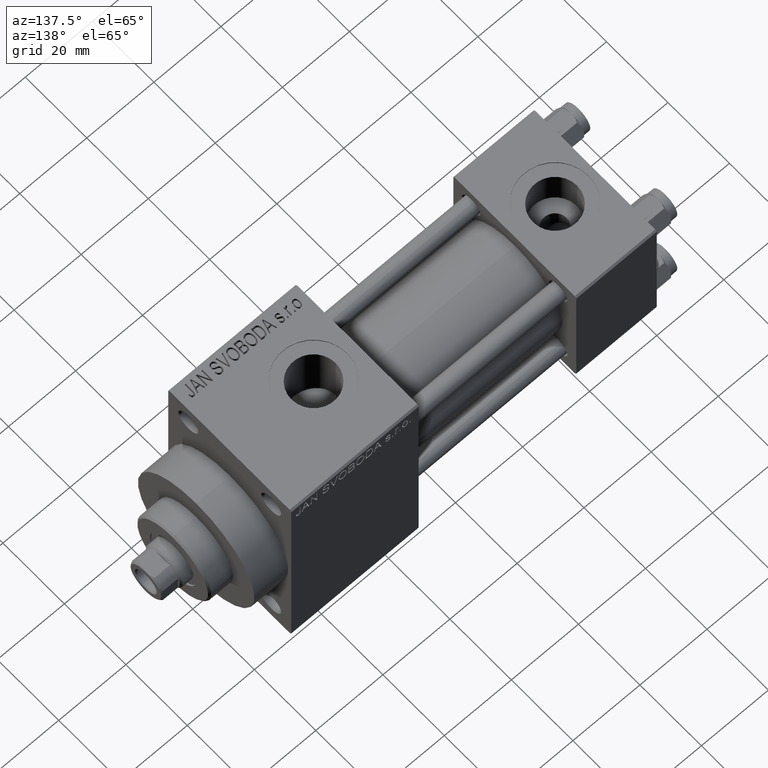
[diagram: clean part render]
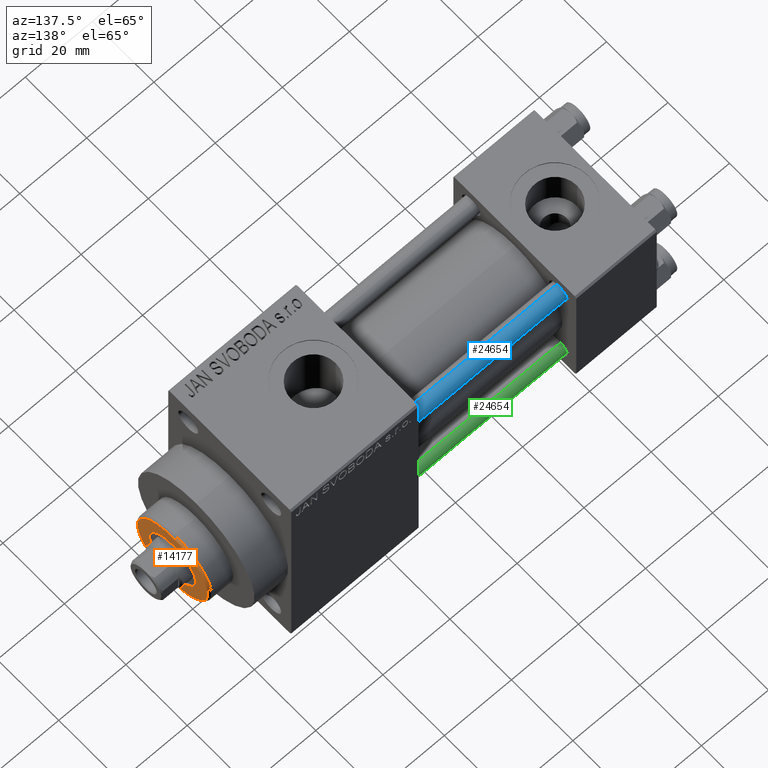
[diagram: same view with three faces highlighted in distinct colors, each labeled with its STEP entity id]
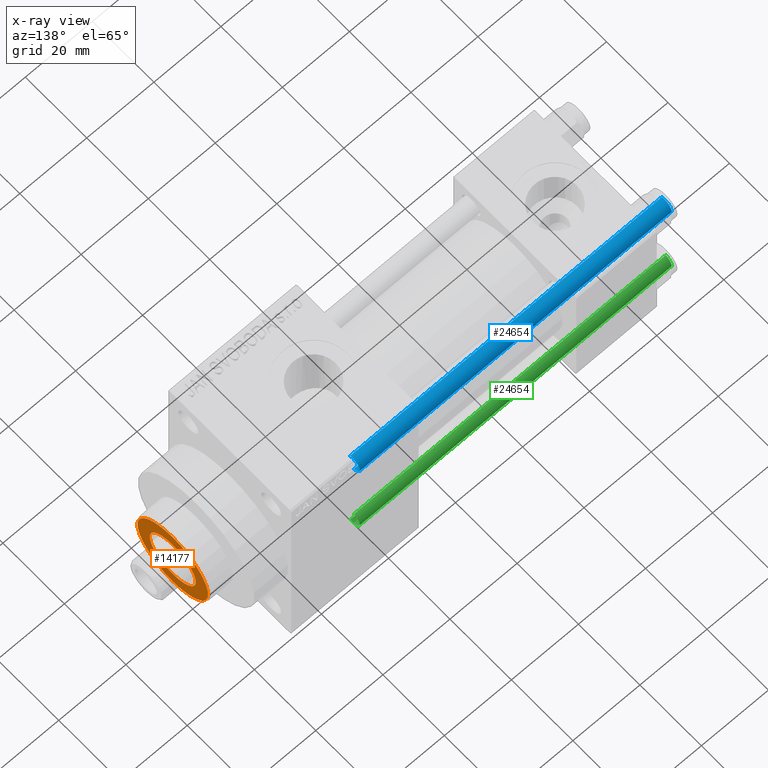
[diagram: x-ray of the same camera — body ghosted, the three highlighted faces saturated]
A machine part, auxiliary view with three faces highlighted in distinct colors.
The next image is the same camera in x-ray (body ghosted, the three faces saturated) — at least one of them is partly hidden behind the body in this view.
Their STEP definitions:

[orange] entity #14177 — the highlighted planar face has unit normal (1, -0, -0).
#2258 = CARTESIAN_POINT ( 'NONE',  ( -11.50000000000000355, 0.000000000000000000, 50.25999999999999801 ) ) ;
#3258 = CIRCLE ( 'NONE', #45830, 11.50000000000000355 ) ;
#7421 = AXIS2_PLACEMENT_3D ( 'NONE', #12894, #44822, #30535 ) ;
#9396 = AXIS2_PLACEMENT_3D ( 'NONE', #15140, #29678, #22507 ) ;
#10171 = CARTESIAN_POINT ( 'NONE',  ( 11.50000000000000355, 1.438959988998140357E-15, 50.25999999999999801 ) ) ;
#11378 = EDGE_LOOP ( 'NONE', ( #38635, #17516 ) ) ;
#11772 = EDGE_CURVE ( 'NONE', #11872, #29398, #3258, .T. ) ;
#11872 = VERTEX_POINT ( 'NONE', #10171 ) ;
#12894 = CARTESIAN_POINT ( 'NONE',  ( 0.000000000000000000, 0.000000000000000000, 50.25999999999999801 ) ) ;
#14177 = ADVANCED_FACE ( 'NONE', ( #33249, #25625 ), #36591, .T. ) ;
#14239 = CIRCLE ( 'NONE', #7421, 11.50000000000000355 ) ;
#15140 = CARTESIAN_POINT ( 'NONE',  ( 0.000000000000000000, 0.000000000000000000, 50.25999999999999801 ) ) ;
#16124 = DIRECTION ( 'NONE',  ( 1.000000000000000000, 0.000000000000000000, 0.000000000000000000 ) ) ;
#17516 = ORIENTED_EDGE ( 'NONE', *, *, #11772, .T. ) ;
#18623 = DIRECTION ( 'NONE',  ( 0.000000000000000000, 0.000000000000000000, 1.000000000000000000 ) ) ;
#19926 = EDGE_CURVE ( 'NONE', #40275, #35281, #43840, .T. ) ;
#20225 = AXIS2_PLACEMENT_3D ( 'NONE', #38614, #27411, #20519 ) ;
#20519 = DIRECTION ( 'NONE',  ( 1.000000000000000000, 0.000000000000000000, 0.000000000000000000 ) ) ;
#22507 = DIRECTION ( 'NONE',  ( 1.000000000000000000, 0.000000000000000000, -0.000000000000000000 ) ) ;
#23005 = EDGE_LOOP ( 'NONE', ( #29209, #31927 ) ) ;
#23734 = DIRECTION ( 'NONE',  ( 0.000000000000000000, 0.000000000000000000, 1.000000000000000000 ) ) ;
#25625 = FACE_OUTER_BOUND ( 'NONE', #11378, .T. ) ;
#27411 = DIRECTION ( 'NONE',  ( 0.000000000000000000, 0.000000000000000000, 1.000000000000000000 ) ) ;
#29209 = ORIENTED_EDGE ( 'NONE', *, *, #19926, .F. ) ;
#29398 = VERTEX_POINT ( 'NONE', #2258 ) ;
#29543 = AXIS2_PLACEMENT_3D ( 'NONE', #32921, #18623, #32688 ) ;
#29678 = DIRECTION ( 'NONE',  ( 0.000000000000000000, 0.000000000000000000, 1.000000000000000000 ) ) ;
#30535 = DIRECTION ( 'NONE',  ( 1.000000000000000000, 0.000000000000000000, 0.000000000000000000 ) ) ;
#30894 = CARTESIAN_POINT ( 'NONE',  ( 0.000000000000000000, 0.000000000000000000, 50.25999999999999801 ) ) ;
#31927 = ORIENTED_EDGE ( 'NONE', *, *, #39338, .F. ) ;
#32688 = DIRECTION ( 'NONE',  ( 1.000000000000000000, 0.000000000000000000, 0.000000000000000000 ) ) ;
#32915 = EDGE_CURVE ( 'NONE', #29398, #11872, #14239, .T. ) ;
#32921 = CARTESIAN_POINT ( 'NONE',  ( 0.000000000000000000, 0.000000000000000000, 50.25999999999999801 ) ) ;
#33249 = FACE_BOUND ( 'NONE', #23005, .T. ) ;
#35281 = VERTEX_POINT ( 'NONE', #39467 ) ;
#36591 = PLANE ( 'NONE',  #9396 ) ;
#37150 = CIRCLE ( 'NONE', #29543, 7.500000000000000888 ) ;
#38614 = CARTESIAN_POINT ( 'NONE',  ( 0.000000000000000000, 0.000000000000000000, 50.25999999999999801 ) ) ;
#38635 = ORIENTED_EDGE ( 'NONE', *, *, #32915, .T. ) ;
#39338 = EDGE_CURVE ( 'NONE', #35281, #40275, #37150, .T. ) ;
#39467 = CARTESIAN_POINT ( 'NONE',  ( -7.500000000000000888, 9.184850993605149917E-16, 50.25999999999999801 ) ) ;
#40275 = VERTEX_POINT ( 'NONE', #40584 ) ;
#40584 = CARTESIAN_POINT ( 'NONE',  ( 7.500000000000000888, 0.000000000000000000, 50.25999999999999801 ) ) ;
#43840 = CIRCLE ( 'NONE', #20225, 7.500000000000000888 ) ;
#44822 = DIRECTION ( 'NONE',  ( 0.000000000000000000, 0.000000000000000000, 1.000000000000000000 ) ) ;
#45830 = AXIS2_PLACEMENT_3D ( 'NONE', #30894, #23734, #16124 ) ;

[blue] entity #24654 — the highlighted cylindrical surface (edge-blend (fillet) strip) has radius 2.5 mm, axis along (-1, -0, 0).
#1637 = DIRECTION ( 'NONE',  ( 0.000000000000000000, 0.000000000000000000, -1.000000000000000000 ) ) ;
#3352 = VERTEX_POINT ( 'NONE', #37248 ) ;
#4868 = CYLINDRICAL_SURFACE ( 'NONE', #46121, 2.500000000000000000 ) ;
#5535 = LINE ( 'NONE', #42662, #39033 ) ;
#6017 = EDGE_CURVE ( 'NONE', #3352, #11164, #27843, .T. ) ;
#6374 = DIRECTION ( 'NONE',  ( 1.000000000000000000, 0.000000000000000000, 0.000000000000000000 ) ) ;
#7518 = CIRCLE ( 'NONE', #29583, 2.500000000000000000 ) ;
#7741 = VECTOR ( 'NONE', #42857, 1000.000000000000000 ) ;
#9105 = DIRECTION ( 'NONE',  ( -0.000000000000000000, -0.000000000000000000, -1.000000000000000000 ) ) ;
#11164 = VERTEX_POINT ( 'NONE', #40329 ) ;
#12710 = VERTEX_POINT ( 'NONE', #20172 ) ;
#13600 = EDGE_CURVE ( 'NONE', #35427, #12710, #5535, .T. ) ;
#13751 = DIRECTION ( 'NONE',  ( -0.000000000000000000, -0.000000000000000000, 1.000000000000000000 ) ) ;
#19376 = CARTESIAN_POINT ( 'NONE',  ( 0.000000000000000000, 0.000000000000000000, 94.00000000000000000 ) ) ;
#20172 = CARTESIAN_POINT ( 'NONE',  ( -2.500000000000000000, 0.000000000000000000, 0.5000000000000004441 ) ) ;
#21827 = CARTESIAN_POINT ( 'NONE',  ( -2.500000000000000000, 0.000000000000000000, 93.50000000000001421 ) ) ;
#23056 = CARTESIAN_POINT ( 'NONE',  ( 0.000000000000000000, 0.000000000000000000, 93.50000000000001421 ) ) ;
#24654 = ADVANCED_FACE ( 'NONE', ( #37476 ), #4868, .T. ) ;
#27843 = LINE ( 'NONE', #28316, #7741 ) ;
#28316 = CARTESIAN_POINT ( 'NONE',  ( 2.500000000000000000, 3.061616997868383141E-16, 94.00000000000000000 ) ) ;
#28682 = EDGE_LOOP ( 'NONE', ( #35649, #42118, #34179, #45542 ) ) ;
#29583 = AXIS2_PLACEMENT_3D ( 'NONE', #38520, #13751, #6374 ) ;
#30476 = AXIS2_PLACEMENT_3D ( 'NONE', #23056, #1637, #34019 ) ;
#34019 = DIRECTION ( 'NONE',  ( 1.000000000000000000, 0.000000000000000000, 0.000000000000000000 ) ) ;
#34179 = ORIENTED_EDGE ( 'NONE', *, *, #35754, .T. ) ;
#35427 = VERTEX_POINT ( 'NONE', #21827 ) ;
#35649 = ORIENTED_EDGE ( 'NONE', *, *, #44499, .T. ) ;
#35754 = EDGE_CURVE ( 'NONE', #11164, #12710, #7518, .T. ) ;
#37248 = CARTESIAN_POINT ( 'NONE',  ( 2.500000000000000000, 3.061616997868383141E-16, 93.50000000000001421 ) ) ;
#37476 = FACE_OUTER_BOUND ( 'NONE', #28682, .T. ) ;
#38520 = CARTESIAN_POINT ( 'NONE',  ( 0.000000000000000000, 0.000000000000000000, 0.5000000000000004441 ) ) ;
#38879 = DIRECTION ( 'NONE',  ( -0.000000000000000000, -0.000000000000000000, -1.000000000000000000 ) ) ;
#39033 = VECTOR ( 'NONE', #9105, 1000.000000000000000 ) ;
#39595 = CIRCLE ( 'NONE', #30476, 2.500000000000000000 ) ;
#40329 = CARTESIAN_POINT ( 'NONE',  ( 2.500000000000000000, 3.061616997868383141E-16, 0.5000000000000004441 ) ) ;
#42118 = ORIENTED_EDGE ( 'NONE', *, *, #6017, .T. ) ;
#42662 = CARTESIAN_POINT ( 'NONE',  ( -2.500000000000000000, 0.000000000000000000, 94.00000000000000000 ) ) ;
#42857 = DIRECTION ( 'NONE',  ( -0.000000000000000000, -0.000000000000000000, -1.000000000000000000 ) ) ;
#44499 = EDGE_CURVE ( 'NONE', #35427, #3352, #39595, .T. ) ;
#45542 = ORIENTED_EDGE ( 'NONE', *, *, #13600, .F. ) ;
#45788 = DIRECTION ( 'NONE',  ( -1.000000000000000000, 0.000000000000000000, 0.000000000000000000 ) ) ;
#46121 = AXIS2_PLACEMENT_3D ( 'NONE', #19376, #38879, #45788 ) ;

[green] entity #24654 — the highlighted cylindrical surface (edge-blend (fillet) strip) has radius 2.5 mm, axis along (1, -0, 0).
#1637 = DIRECTION ( 'NONE',  ( 0.000000000000000000, 0.000000000000000000, -1.000000000000000000 ) ) ;
#3352 = VERTEX_POINT ( 'NONE', #37248 ) ;
#4868 = CYLINDRICAL_SURFACE ( 'NONE', #46121, 2.500000000000000000 ) ;
#5535 = LINE ( 'NONE', #42662, #39033 ) ;
#6017 = EDGE_CURVE ( 'NONE', #3352, #11164, #27843, .T. ) ;
#6374 = DIRECTION ( 'NONE',  ( 1.000000000000000000, 0.000000000000000000, 0.000000000000000000 ) ) ;
#7518 = CIRCLE ( 'NONE', #29583, 2.500000000000000000 ) ;
#7741 = VECTOR ( 'NONE', #42857, 1000.000000000000000 ) ;
#9105 = DIRECTION ( 'NONE',  ( -0.000000000000000000, -0.000000000000000000, -1.000000000000000000 ) ) ;
#11164 = VERTEX_POINT ( 'NONE', #40329 ) ;
#12710 = VERTEX_POINT ( 'NONE', #20172 ) ;
#13600 = EDGE_CURVE ( 'NONE', #35427, #12710, #5535, .T. ) ;
#13751 = DIRECTION ( 'NONE',  ( -0.000000000000000000, -0.000000000000000000, 1.000000000000000000 ) ) ;
#19376 = CARTESIAN_POINT ( 'NONE',  ( 0.000000000000000000, 0.000000000000000000, 94.00000000000000000 ) ) ;
#20172 = CARTESIAN_POINT ( 'NONE',  ( -2.500000000000000000, 0.000000000000000000, 0.5000000000000004441 ) ) ;
#21827 = CARTESIAN_POINT ( 'NONE',  ( -2.500000000000000000, 0.000000000000000000, 93.50000000000001421 ) ) ;
#23056 = CARTESIAN_POINT ( 'NONE',  ( 0.000000000000000000, 0.000000000000000000, 93.50000000000001421 ) ) ;
#24654 = ADVANCED_FACE ( 'NONE', ( #37476 ), #4868, .T. ) ;
#27843 = LINE ( 'NONE', #28316, #7741 ) ;
#28316 = CARTESIAN_POINT ( 'NONE',  ( 2.500000000000000000, 3.061616997868383141E-16, 94.00000000000000000 ) ) ;
#28682 = EDGE_LOOP ( 'NONE', ( #35649, #42118, #34179, #45542 ) ) ;
#29583 = AXIS2_PLACEMENT_3D ( 'NONE', #38520, #13751, #6374 ) ;
#30476 = AXIS2_PLACEMENT_3D ( 'NONE', #23056, #1637, #34019 ) ;
#34019 = DIRECTION ( 'NONE',  ( 1.000000000000000000, 0.000000000000000000, 0.000000000000000000 ) ) ;
#34179 = ORIENTED_EDGE ( 'NONE', *, *, #35754, .T. ) ;
#35427 = VERTEX_POINT ( 'NONE', #21827 ) ;
#35649 = ORIENTED_EDGE ( 'NONE', *, *, #44499, .T. ) ;
#35754 = EDGE_CURVE ( 'NONE', #11164, #12710, #7518, .T. ) ;
#37248 = CARTESIAN_POINT ( 'NONE',  ( 2.500000000000000000, 3.061616997868383141E-16, 93.50000000000001421 ) ) ;
#37476 = FACE_OUTER_BOUND ( 'NONE', #28682, .T. ) ;
#38520 = CARTESIAN_POINT ( 'NONE',  ( 0.000000000000000000, 0.000000000000000000, 0.5000000000000004441 ) ) ;
#38879 = DIRECTION ( 'NONE',  ( -0.000000000000000000, -0.000000000000000000, -1.000000000000000000 ) ) ;
#39033 = VECTOR ( 'NONE', #9105, 1000.000000000000000 ) ;
#39595 = CIRCLE ( 'NONE', #30476, 2.500000000000000000 ) ;
#40329 = CARTESIAN_POINT ( 'NONE',  ( 2.500000000000000000, 3.061616997868383141E-16, 0.5000000000000004441 ) ) ;
#42118 = ORIENTED_EDGE ( 'NONE', *, *, #6017, .T. ) ;
#42662 = CARTESIAN_POINT ( 'NONE',  ( -2.500000000000000000, 0.000000000000000000, 94.00000000000000000 ) ) ;
#42857 = DIRECTION ( 'NONE',  ( -0.000000000000000000, -0.000000000000000000, -1.000000000000000000 ) ) ;
#44499 = EDGE_CURVE ( 'NONE', #35427, #3352, #39595, .T. ) ;
#45542 = ORIENTED_EDGE ( 'NONE', *, *, #13600, .F. ) ;
#45788 = DIRECTION ( 'NONE',  ( -1.000000000000000000, 0.000000000000000000, 0.000000000000000000 ) ) ;
#46121 = AXIS2_PLACEMENT_3D ( 'NONE', #19376, #38879, #45788 ) ;